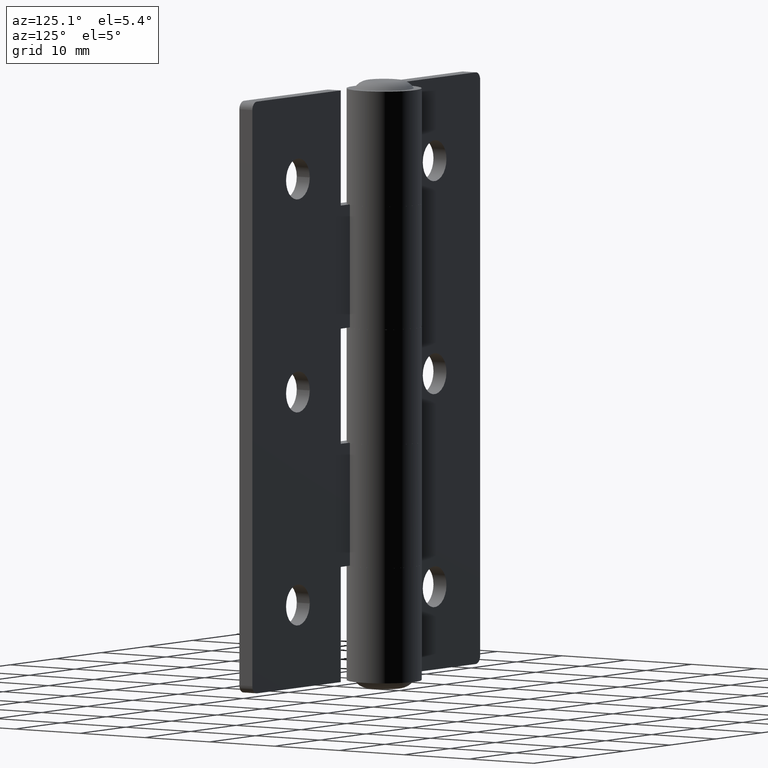
[diagram: clean part render]
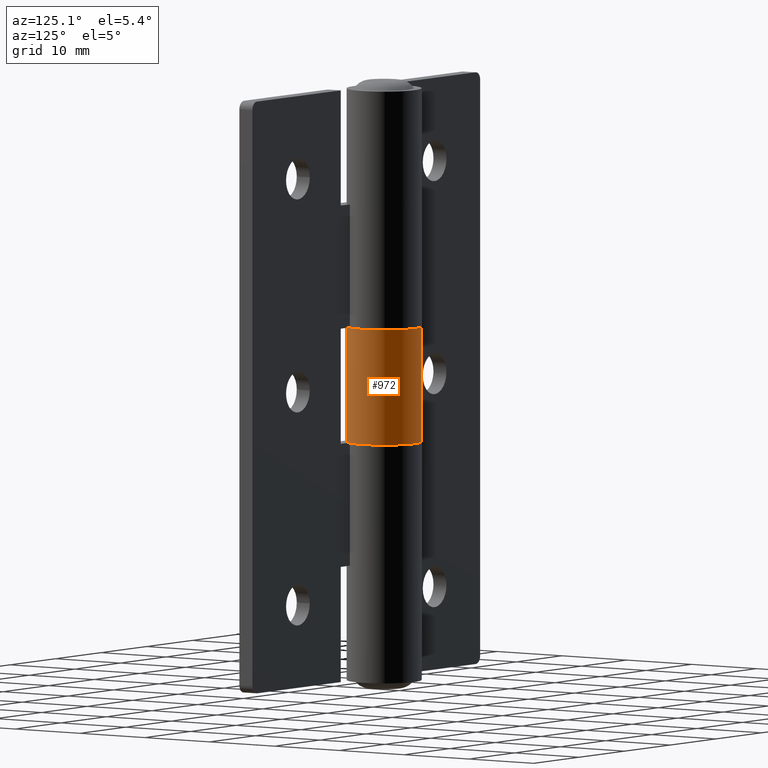
[diagram: same view with one face highlighted and labeled with its STEP entity id]
A machine part, auxiliary view. The second image highlights one B-rep face of the part: STEP entity #972.
In plain terms, the highlighted cylindrical surface (partial cylindrical patch) has radius 4.75 mm, axis along (0, 0, 1).
Its self-contained STEP definition (entity closure, byte-faithful):
#110=FACE_OUTER_BOUND('',#174,.T.);
#174=EDGE_LOOP('',(#791,#792,#793,#794));
#243=LINE('',#1484,#329);
#262=LINE('',#1542,#348);
#329=VECTOR('',#1172,14.6);
#348=VECTOR('',#1241,14.6);
#405=CIRCLE('',#1031,4.75);
#411=CIRCLE('',#1042,4.75);
#467=VERTEX_POINT('',#1481);
#468=VERTEX_POINT('',#1483);
#475=VERTEX_POINT('',#1503);
#481=VERTEX_POINT('',#1527);
#566=EDGE_CURVE('',#467,#468,#243,.T.);
#575=EDGE_CURVE('',#467,#475,#405,.T.);
#588=EDGE_CURVE('',#481,#468,#411,.T.);
#596=EDGE_CURVE('',#475,#481,#262,.T.);
#791=ORIENTED_EDGE('',*,*,#575,.T.);
#792=ORIENTED_EDGE('',*,*,#596,.T.);
#793=ORIENTED_EDGE('',*,*,#588,.T.);
#794=ORIENTED_EDGE('',*,*,#566,.F.);
#937=CYLINDRICAL_SURFACE('',#1053,4.75);
#972=ADVANCED_FACE('',(#110),#937,.T.);
#1031=AXIS2_PLACEMENT_3D('',#1504,#1192,#1193);
#1042=AXIS2_PLACEMENT_3D('',#1528,#1221,#1222);
#1053=AXIS2_PLACEMENT_3D('',#1547,#1250,#1251);
#1172=DIRECTION('',(0.,0.,1.));
#1192=DIRECTION('center_axis',(0.,0.,1.));
#1193=DIRECTION('ref_axis',(-0.815364914991035,-0.578947368421052,0.));
#1221=DIRECTION('center_axis',(4.29071700338225E-16,1.19091320232641E-31,
-1.));
#1222=DIRECTION('ref_axis',(-0.815364914991035,-0.578947368421052,0.));
#1241=DIRECTION('',(0.,0.,1.));
#1250=DIRECTION('center_axis',(0.,0.,1.));
#1251=DIRECTION('ref_axis',(-0.815364914991035,-0.578947368421052,0.));
#1481=CARTESIAN_POINT('',(1.85305200950611E-15,0.,-7.3));
#1483=CARTESIAN_POINT('',(1.85305200950611E-15,0.,7.3));
#1484=CARTESIAN_POINT('',(1.85305200950611E-15,0.,0.));
#1503=CARTESIAN_POINT('',(-4.11362066797608,2.375,-7.3));
#1504=CARTESIAN_POINT('Origin',(-3.67394039744207E-16,4.75,-7.3));
#1527=CARTESIAN_POINT('',(-4.11362066797608,2.375,7.3));
#1528=CARTESIAN_POINT('Origin',(-3.67394039744207E-16,4.75,7.3));
#1542=CARTESIAN_POINT('',(-4.11362066797608,2.375,0.));
#1547=CARTESIAN_POINT('Origin',(-3.67394039744207E-16,4.75,0.));